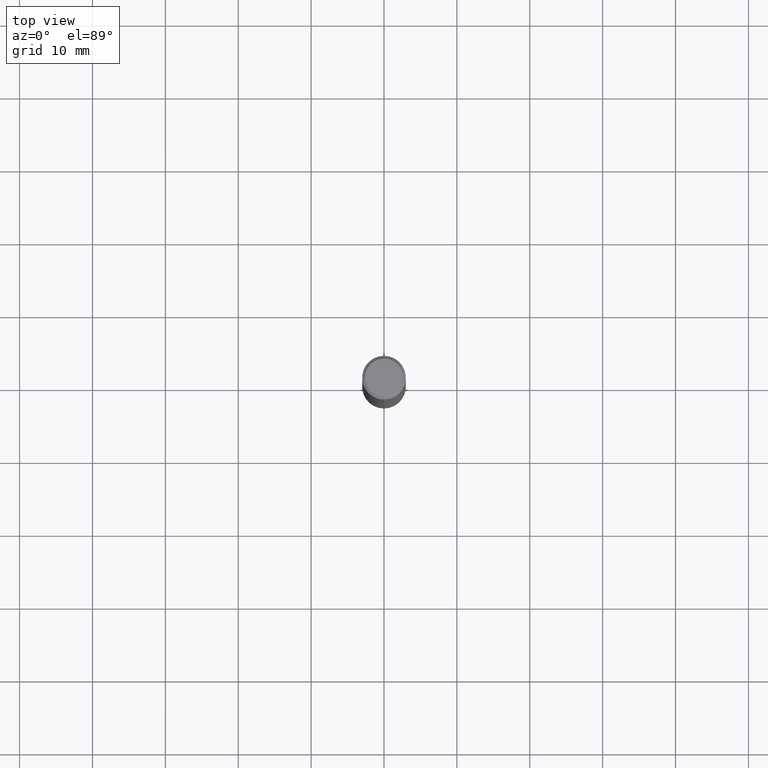
[diagram: clean part render]
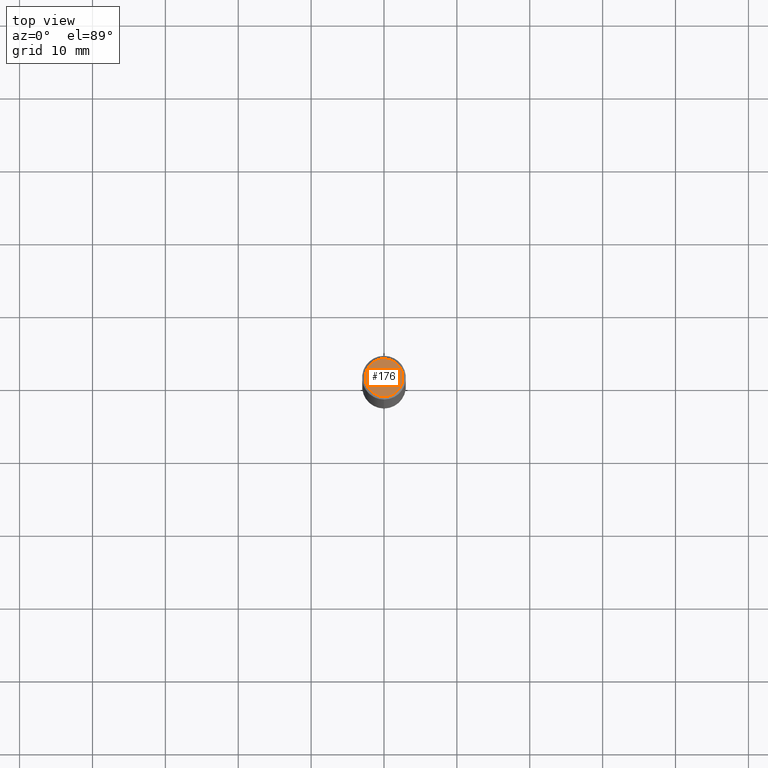
[diagram: same view with one face highlighted and labeled with its STEP entity id]
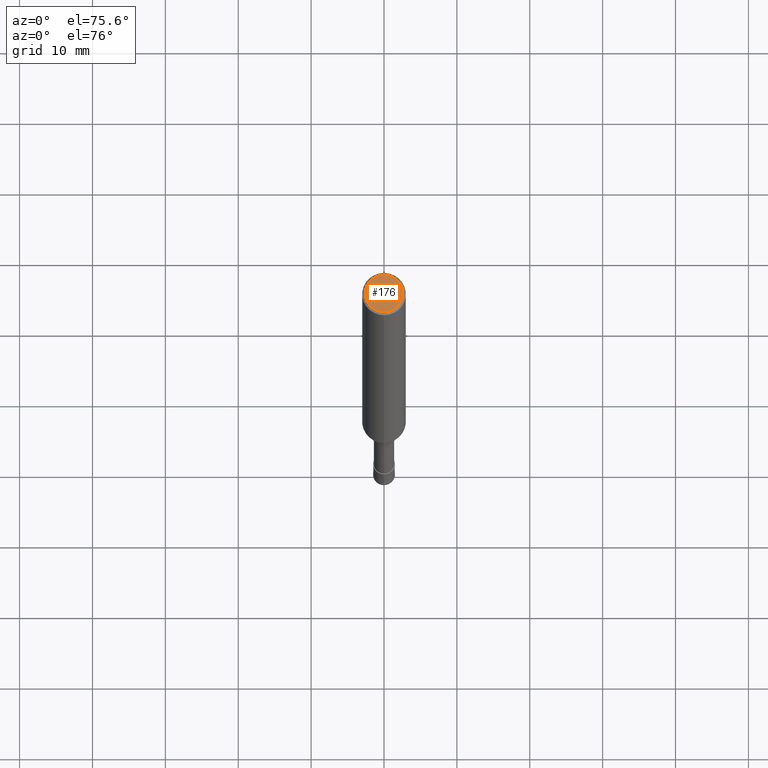
[diagram: same view with one face highlighted and labeled with its STEP entity id]
A machine part, top view. The second image highlights one B-rep face of the part: STEP entity #176.
A second angle (auxiliary view) of the same face is appended — the face is thin or edge-on in the first view.
In plain terms, the highlighted planar face has unit normal (-0, 0, 1).
Its self-contained STEP definition (entity closure, byte-faithful):
#98=VERTEX_POINT('',#236);
#132=EDGE_CURVE('',#98,#158,#276,.T.);
#158=VERTEX_POINT('',#306);
#162=EDGE_CURVE('',#158,#98,#310,.T.);
#176=ADVANCED_FACE('',(#324),#325,.T.);
#236=CARTESIAN_POINT('',(0.0,2.6,0.0));
#276=CIRCLE('',#431,2.6);
#306=CARTESIAN_POINT('',(3.18397651993818E-016,-2.6,0.0));
#310=CIRCLE('',#473,2.6);
#324=FACE_OUTER_BOUND('',#491,.T.);
#325=PLANE('',#492);
#431=AXIS2_PLACEMENT_3D('',#611,#612,#613);
#473=AXIS2_PLACEMENT_3D('',#655,#656,#657);
#491=EDGE_LOOP('',(#665,#666));
#492=AXIS2_PLACEMENT_3D('',#667,#668,#669);
#611=CARTESIAN_POINT('',(0.0,0.0,0.0));
#612=DIRECTION('',(0.0,0.0,-1.0));
#613=DIRECTION('',(0.0,1.0,0.0));
#655=CARTESIAN_POINT('',(0.0,0.0,0.0));
#656=DIRECTION('',(0.0,0.0,-1.0));
#657=DIRECTION('',(0.0,1.0,0.0));
#665=ORIENTED_EDGE('',*,*,#132,.F.);
#666=ORIENTED_EDGE('',*,*,#162,.F.);
#667=CARTESIAN_POINT('',(0.0,1.3,0.0));
#668=DIRECTION('',(-0.0,0.0,1.0));
#669=DIRECTION('',(0.0,-1.0,0.0));